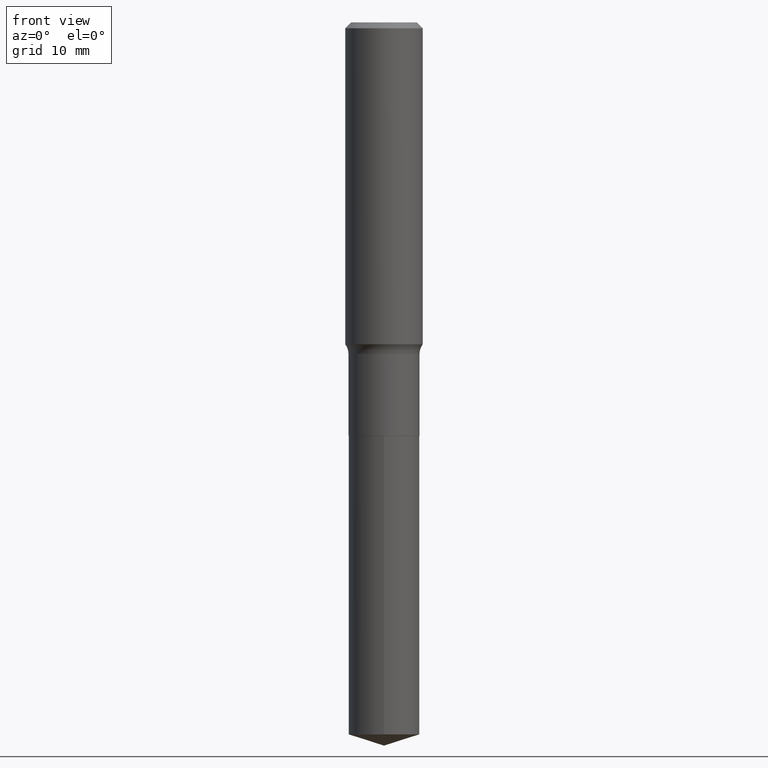
[diagram: clean part render]
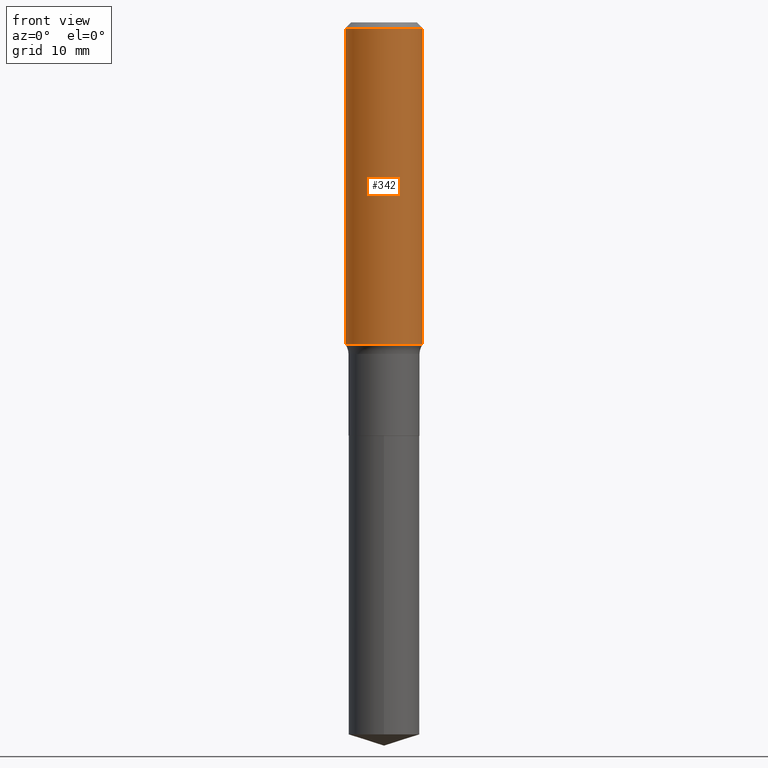
[diagram: same view with one face highlighted and labeled with its STEP entity id]
A machine part, front view. The second image highlights one B-rep face of the part: STEP entity #342.
In plain terms, the highlighted cylindrical surface (partial cylindrical patch) has radius 4.7625 mm, axis along (-0, 0, 1).
Its self-contained STEP definition (entity closure, byte-faithful):
#7 = CARTESIAN_POINT ( 'NONE',  ( 0.1875000000000000555, -1.407503414721139514E-15, -0.02812500000000019498 ) ) ;
#11 = EDGE_CURVE ( 'NONE', #125, #226, #289, .T. ) ;
#14 = DIRECTION ( 'NONE',  ( 1.000000000000000000, -6.982962677686266711E-15, 4.876176775795935793E-29 ) ) ;
#34 = CARTESIAN_POINT ( 'NONE',  ( 0.1875000000000001110, -1.309305502066175797E-15, 9.142831454617385217E-30 ) ) ;
#43 = DIRECTION ( 'NONE',  ( 1.000000000000000000, -6.982962677686265922E-15, 0.000000000000000000 ) ) ;
#63 = ORIENTED_EDGE ( 'NONE', *, *, #11, .T. ) ;
#65 = ORIENTED_EDGE ( 'NONE', *, *, #462, .T. ) ;
#72 = AXIS2_PLACEMENT_3D ( 'NONE', #436, #351, #14 ) ;
#89 = VECTOR ( 'NONE', #329, 39.37007874015748143 ) ;
#95 = EDGE_CURVE ( 'NONE', #114, #226, #397, .T. ) ;
#110 = DIRECTION ( 'NONE',  ( -2.445468806185136597E-29, 3.491481338843145583E-15, 1.000000000000000000 ) ) ;
#112 = DIRECTION ( 'NONE',  ( 1.000000000000000000, -6.982962677686265133E-15, 0.000000000000000000 ) ) ;
#114 = VERTEX_POINT ( 'NONE', #395 ) ;
#116 = CARTESIAN_POINT ( 'NONE',  ( 0.1875000000000002498, -6.748335131716026097E-15, -1.557799999999999407 ) ) ;
#125 = VERTEX_POINT ( 'NONE', #116 ) ;
#142 = LINE ( 'NONE', #413, #362 ) ;
#171 = ORIENTED_EDGE ( 'NONE', *, *, #95, .F. ) ;
#191 = CIRCLE ( 'NONE', #292, 0.1875000000000002220 ) ;
#194 = CARTESIAN_POINT ( 'NONE',  ( 6.877881017395745374E-31, -9.819791265496414867E-17, -0.02812500000000019498 ) ) ;
#206 = CYLINDRICAL_SURFACE ( 'NONE', #72, 0.1875000000000001110 ) ;
#226 = VERTEX_POINT ( 'NONE', #7 ) ;
#249 = AXIS2_PLACEMENT_3D ( 'NONE', #194, #341, #43 ) ;
#289 = LINE ( 'NONE', #34, #89 ) ;
#292 = AXIS2_PLACEMENT_3D ( 'NONE', #374, #110, #112 ) ;
#295 = VERTEX_POINT ( 'NONE', #383 ) ;
#323 = EDGE_LOOP ( 'NONE', ( #459, #65, #63, #171 ) ) ;
#329 = DIRECTION ( 'NONE',  ( -2.445468806185136877E-29, 3.491481338843145188E-15, 1.000000000000000000 ) ) ;
#341 = DIRECTION ( 'NONE',  ( -2.445468806185136597E-29, 3.491481338843145583E-15, 1.000000000000000000 ) ) ;
#342 = ADVANCED_FACE ( 'NONE', ( #399 ), #206, .T. ) ;
#351 = DIRECTION ( 'NONE',  ( -2.445468806185136597E-29, 3.491481338843145583E-15, 1.000000000000000000 ) ) ;
#362 = VECTOR ( 'NONE', #363, 39.37007874015748143 ) ;
#363 = DIRECTION ( 'NONE',  ( -2.445468806185136877E-29, 3.491481338843145188E-15, 1.000000000000000000 ) ) ;
#374 = CARTESIAN_POINT ( 'NONE',  ( 3.809551306275204271E-29, -5.439029629649850300E-15, -1.557799999999999407 ) ) ;
#383 = CARTESIAN_POINT ( 'NONE',  ( -0.1875000000000002498, -4.106762000099660085E-15, -1.557799999999999407 ) ) ;
#395 = CARTESIAN_POINT ( 'NONE',  ( -0.1875000000000000555, -1.436346141602218174E-15, -0.02812500000000019498 ) ) ;
#397 = CIRCLE ( 'NONE', #249, 0.1875000000000000555 ) ;
#399 = FACE_OUTER_BOUND ( 'NONE', #323, .T. ) ;
#413 = CARTESIAN_POINT ( 'NONE',  ( -0.1875000000000001110, 1.332267629550188637E-15, -9.223003294227953596E-30 ) ) ;
#430 = EDGE_CURVE ( 'NONE', #295, #114, #142, .T. ) ;
#436 = CARTESIAN_POINT ( 'NONE',  ( 0.000000000000000000, 0.000000000000000000, 0.000000000000000000 ) ) ;
#459 = ORIENTED_EDGE ( 'NONE', *, *, #430, .F. ) ;
#462 = EDGE_CURVE ( 'NONE', #295, #125, #191, .T. ) ;